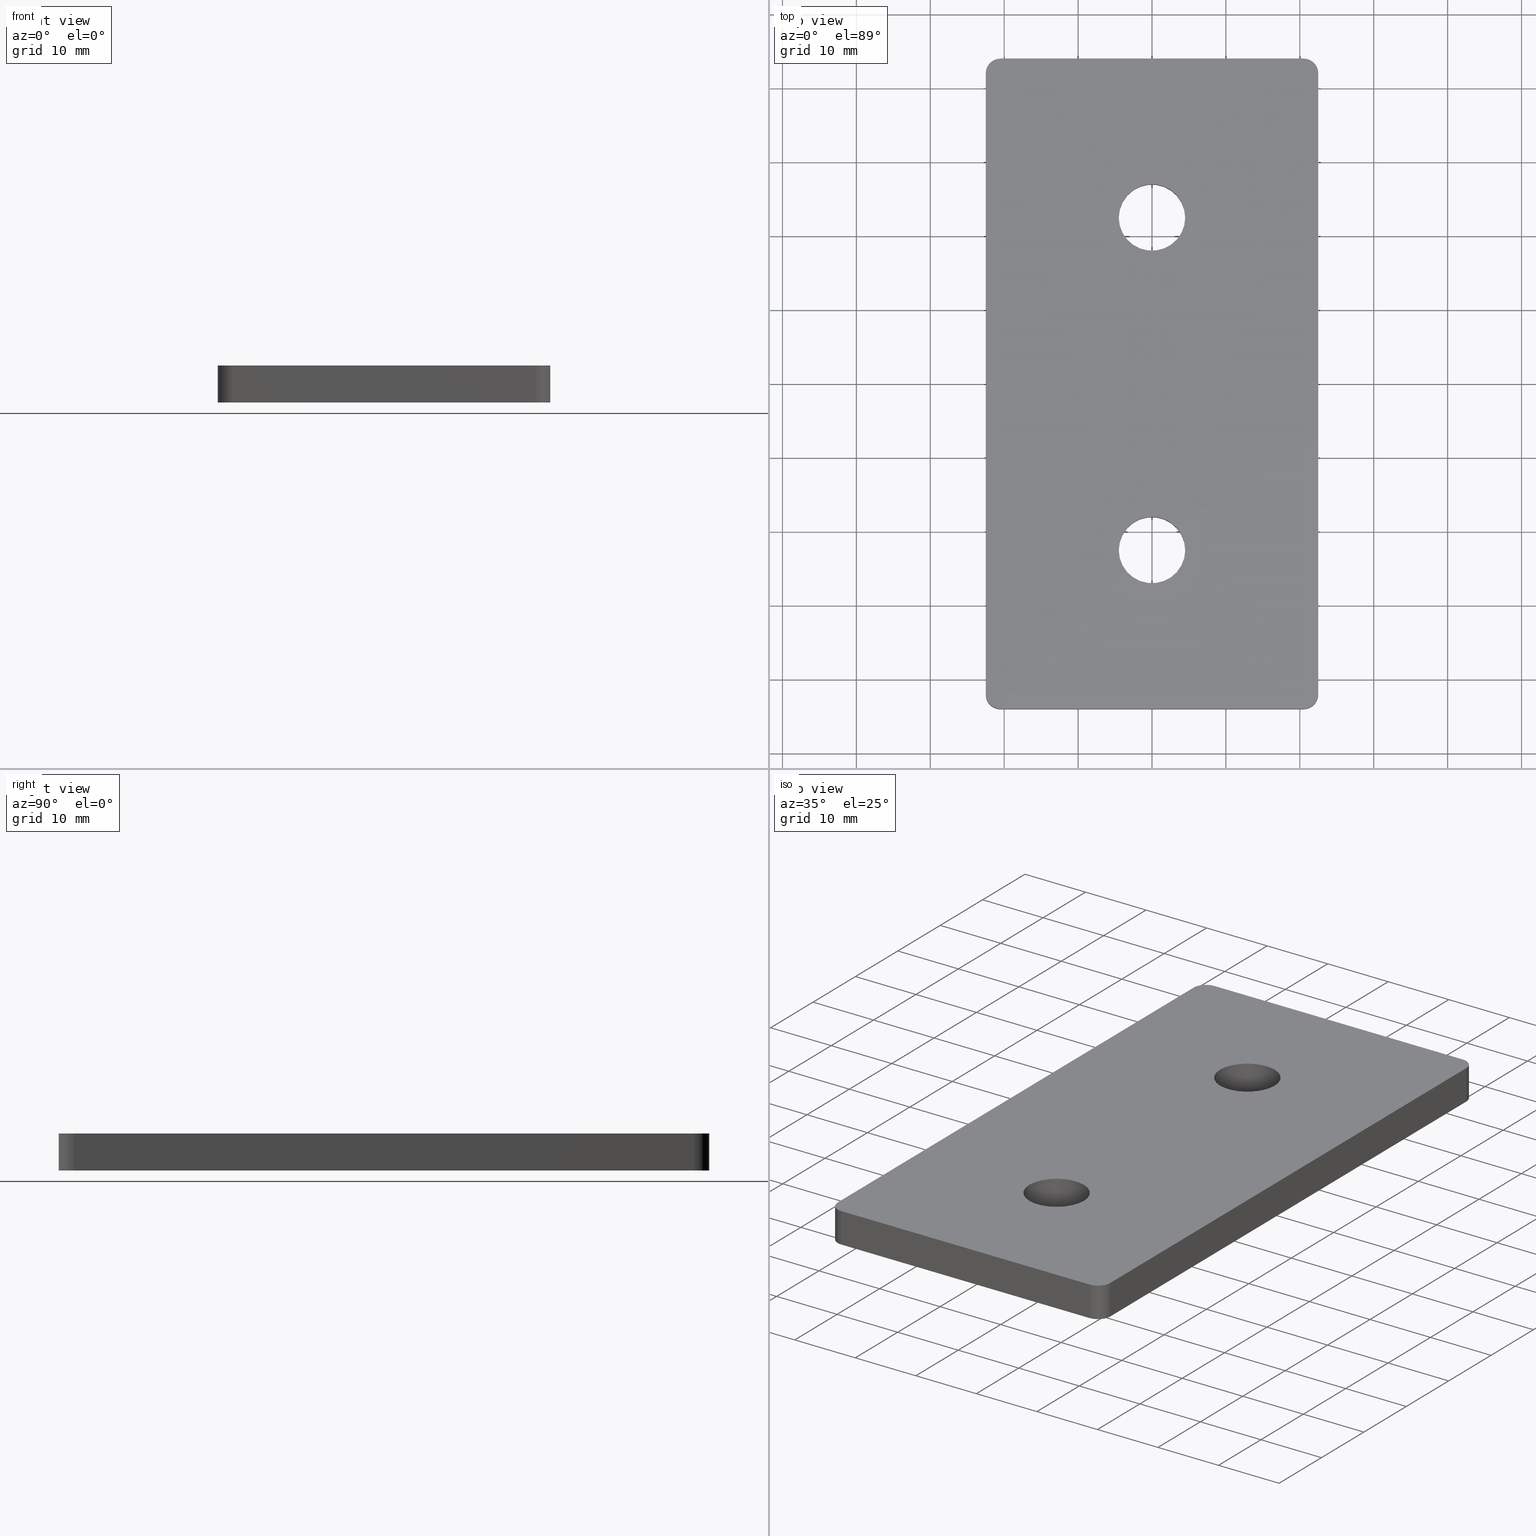
[diagram: canonical four-view strip — front | top / right | iso, engineering-drawing reading convention]
A machine part, canonical four-view strip (front | top / right | iso — engineering-drawing reading convention). The complete STEP part file that produces these views, byte-faithful:
ISO-10303-21;
HEADER;
/* Generated by software containing ST-Developer
 * from STEP Tools, Inc. (www.steptools.com) 
 */

FILE_DESCRIPTION(
/* description */ ('PIATTO DI UNIONE TRA PROF. 45X45 E 45X45'),
/* implementation_level */ '2;1');

FILE_NAME(
/* name */ 
'Q:\\Catalogo\\2_Accessori Dierre\\Per Download Web e catalogo cartace
o\\CATALOGO ELEMENTI ASSEMBLAGGIO\\PAGINA 19\\DPSXX0000976.stp',
/* time_stamp */ '2018-06-19T08:52:34+02:00',
/* author */ ('fzagni'),
/* organization */ (''),
/* preprocessor_version */ 'ST-DEVELOPER v16.1',
/* originating_system */ 'Autodesk Inventor 2016',
/* authorisation */ '');

FILE_SCHEMA (('AUTOMOTIVE_DESIGN { 1 0 10303 214 3 1 1 }'));
ENDSEC;

DATA;
#10=MECHANICAL_DESIGN_GEOMETRIC_PRESENTATION_REPRESENTATION('',(#13),#379);
#11=SHAPE_REPRESENTATION_RELATIONSHIP('SRR','None',#388,#12);
#12=ADVANCED_BREP_SHAPE_REPRESENTATION('',(#14),#378);
#13=STYLED_ITEM('',(#397),#14);
#14=MANIFOLD_SOLID_BREP('Solido1',#223);
#15=FACE_BOUND('',#41,.T.);
#16=FACE_BOUND('',#42,.T.);
#17=FACE_BOUND('',#49,.T.);
#18=FACE_BOUND('',#51,.T.);
#19=FACE_BOUND('',#55,.T.);
#20=FACE_BOUND('',#56,.T.);
#21=PLANE('',#228);
#22=PLANE('',#234);
#23=PLANE('',#239);
#24=PLANE('',#246);
#25=PLANE('',#247);
#26=PLANE('',#248);
#27=FACE_OUTER_BOUND('',#39,.T.);
#28=FACE_OUTER_BOUND('',#40,.T.);
#29=FACE_OUTER_BOUND('',#43,.T.);
#30=FACE_OUTER_BOUND('',#44,.T.);
#31=FACE_OUTER_BOUND('',#45,.T.);
#32=FACE_OUTER_BOUND('',#46,.T.);
#33=FACE_OUTER_BOUND('',#47,.T.);
#34=FACE_OUTER_BOUND('',#48,.T.);
#35=FACE_OUTER_BOUND('',#50,.T.);
#36=FACE_OUTER_BOUND('',#52,.T.);
#37=FACE_OUTER_BOUND('',#53,.T.);
#38=FACE_OUTER_BOUND('',#54,.T.);
#39=EDGE_LOOP('',(#149,#150,#151,#152));
#40=EDGE_LOOP('',(#153,#154,#155,#156,#157,#158,#159,#160));
#41=EDGE_LOOP('',(#161));
#42=EDGE_LOOP('',(#162));
#43=EDGE_LOOP('',(#163,#164,#165,#166));
#44=EDGE_LOOP('',(#167,#168,#169,#170));
#45=EDGE_LOOP('',(#171,#172,#173,#174));
#46=EDGE_LOOP('',(#175,#176,#177,#178));
#47=EDGE_LOOP('',(#179,#180,#181,#182));
#48=EDGE_LOOP('',(#183));
#49=EDGE_LOOP('',(#184));
#50=EDGE_LOOP('',(#185));
#51=EDGE_LOOP('',(#186));
#52=EDGE_LOOP('',(#187,#188,#189,#190));
#53=EDGE_LOOP('',(#191,#192,#193,#194));
#54=EDGE_LOOP('',(#195,#196,#197,#198,#199,#200,#201,#202));
#55=EDGE_LOOP('',(#203));
#56=EDGE_LOOP('',(#204));
#57=LINE('',#321,#73);
#58=LINE('',#324,#74);
#59=LINE('',#327,#75);
#60=LINE('',#331,#76);
#61=LINE('',#335,#77);
#62=LINE('',#338,#78);
#63=LINE('',#345,#79);
#64=LINE('',#346,#80);
#65=LINE('',#350,#81);
#66=LINE('',#355,#82);
#67=LINE('',#356,#83);
#68=LINE('',#359,#84);
#69=LINE('',#360,#85);
#70=LINE('',#364,#86);
#71=LINE('',#372,#87);
#72=LINE('',#374,#88);
#73=VECTOR('',#255,5.);
#74=VECTOR('',#258,5.);
#75=VECTOR('',#261,41.);
#76=VECTOR('',#264,84.);
#77=VECTOR('',#267,41.);
#78=VECTOR('',#270,84.);
#79=VECTOR('',#277,41.);
#80=VECTOR('',#278,5.);
#81=VECTOR('',#283,5.);
#82=VECTOR('',#288,5.);
#83=VECTOR('',#289,5.);
#84=VECTOR('',#292,5.);
#85=VECTOR('',#293,41.);
#86=VECTOR('',#298,5.);
#87=VECTOR('',#309,84.);
#88=VECTOR('',#312,84.);
#89=CIRCLE('',#226,2.);
#90=CIRCLE('',#227,2.);
#91=CIRCLE('',#229,2.);
#92=CIRCLE('',#230,2.);
#93=CIRCLE('',#231,2.);
#94=CIRCLE('',#232,4.5);
#95=CIRCLE('',#233,4.5);
#96=CIRCLE('',#236,2.);
#97=CIRCLE('',#238,2.);
#98=CIRCLE('',#241,2.);
#99=CIRCLE('',#243,4.5);
#100=CIRCLE('',#245,4.5);
#101=VERTEX_POINT('',#317);
#102=VERTEX_POINT('',#318);
#103=VERTEX_POINT('',#320);
#104=VERTEX_POINT('',#322);
#105=VERTEX_POINT('',#326);
#106=VERTEX_POINT('',#328);
#107=VERTEX_POINT('',#330);
#108=VERTEX_POINT('',#332);
#109=VERTEX_POINT('',#334);
#110=VERTEX_POINT('',#336);
#111=VERTEX_POINT('',#339);
#112=VERTEX_POINT('',#341);
#113=VERTEX_POINT('',#344);
#114=VERTEX_POINT('',#348);
#115=VERTEX_POINT('',#352);
#116=VERTEX_POINT('',#353);
#117=VERTEX_POINT('',#358);
#118=VERTEX_POINT('',#362);
#119=VERTEX_POINT('',#366);
#120=VERTEX_POINT('',#369);
#121=EDGE_CURVE('',#101,#102,#89,.T.);
#122=EDGE_CURVE('',#102,#103,#57,.T.);
#123=EDGE_CURVE('',#103,#104,#90,.T.);
#124=EDGE_CURVE('',#104,#101,#58,.T.);
#125=EDGE_CURVE('',#103,#105,#59,.T.);
#126=EDGE_CURVE('',#106,#105,#91,.T.);
#127=EDGE_CURVE('',#106,#107,#60,.T.);
#128=EDGE_CURVE('',#108,#107,#92,.T.);
#129=EDGE_CURVE('',#108,#109,#61,.T.);
#130=EDGE_CURVE('',#110,#109,#93,.T.);
#131=EDGE_CURVE('',#110,#104,#62,.T.);
#132=EDGE_CURVE('',#111,#111,#94,.T.);
#133=EDGE_CURVE('',#112,#112,#95,.T.);
#134=EDGE_CURVE('',#102,#113,#63,.T.);
#135=EDGE_CURVE('',#105,#113,#64,.T.);
#136=EDGE_CURVE('',#113,#114,#96,.T.);
#137=EDGE_CURVE('',#114,#106,#65,.T.);
#138=EDGE_CURVE('',#115,#116,#97,.T.);
#139=EDGE_CURVE('',#116,#110,#66,.T.);
#140=EDGE_CURVE('',#109,#115,#67,.T.);
#141=EDGE_CURVE('',#117,#108,#68,.T.);
#142=EDGE_CURVE('',#117,#115,#69,.T.);
#143=EDGE_CURVE('',#118,#117,#98,.T.);
#144=EDGE_CURVE('',#107,#118,#70,.T.);
#145=EDGE_CURVE('',#119,#119,#99,.T.);
#146=EDGE_CURVE('',#120,#120,#100,.T.);
#147=EDGE_CURVE('',#114,#118,#71,.T.);
#148=EDGE_CURVE('',#116,#101,#72,.T.);
#149=ORIENTED_EDGE('',*,*,#121,.T.);
#150=ORIENTED_EDGE('',*,*,#122,.T.);
#151=ORIENTED_EDGE('',*,*,#123,.T.);
#152=ORIENTED_EDGE('',*,*,#124,.T.);
#153=ORIENTED_EDGE('',*,*,#123,.F.);
#154=ORIENTED_EDGE('',*,*,#125,.T.);
#155=ORIENTED_EDGE('',*,*,#126,.F.);
#156=ORIENTED_EDGE('',*,*,#127,.T.);
#157=ORIENTED_EDGE('',*,*,#128,.F.);
#158=ORIENTED_EDGE('',*,*,#129,.T.);
#159=ORIENTED_EDGE('',*,*,#130,.F.);
#160=ORIENTED_EDGE('',*,*,#131,.T.);
#161=ORIENTED_EDGE('',*,*,#132,.T.);
#162=ORIENTED_EDGE('',*,*,#133,.T.);
#163=ORIENTED_EDGE('',*,*,#122,.F.);
#164=ORIENTED_EDGE('',*,*,#134,.T.);
#165=ORIENTED_EDGE('',*,*,#135,.F.);
#166=ORIENTED_EDGE('',*,*,#125,.F.);
#167=ORIENTED_EDGE('',*,*,#136,.T.);
#168=ORIENTED_EDGE('',*,*,#137,.T.);
#169=ORIENTED_EDGE('',*,*,#126,.T.);
#170=ORIENTED_EDGE('',*,*,#135,.T.);
#171=ORIENTED_EDGE('',*,*,#138,.T.);
#172=ORIENTED_EDGE('',*,*,#139,.T.);
#173=ORIENTED_EDGE('',*,*,#130,.T.);
#174=ORIENTED_EDGE('',*,*,#140,.T.);
#175=ORIENTED_EDGE('',*,*,#140,.F.);
#176=ORIENTED_EDGE('',*,*,#129,.F.);
#177=ORIENTED_EDGE('',*,*,#141,.F.);
#178=ORIENTED_EDGE('',*,*,#142,.T.);
#179=ORIENTED_EDGE('',*,*,#143,.T.);
#180=ORIENTED_EDGE('',*,*,#141,.T.);
#181=ORIENTED_EDGE('',*,*,#128,.T.);
#182=ORIENTED_EDGE('',*,*,#144,.T.);
#183=ORIENTED_EDGE('',*,*,#132,.F.);
#184=ORIENTED_EDGE('',*,*,#145,.F.);
#185=ORIENTED_EDGE('',*,*,#133,.F.);
#186=ORIENTED_EDGE('',*,*,#146,.F.);
#187=ORIENTED_EDGE('',*,*,#137,.F.);
#188=ORIENTED_EDGE('',*,*,#147,.T.);
#189=ORIENTED_EDGE('',*,*,#144,.F.);
#190=ORIENTED_EDGE('',*,*,#127,.F.);
#191=ORIENTED_EDGE('',*,*,#124,.F.);
#192=ORIENTED_EDGE('',*,*,#131,.F.);
#193=ORIENTED_EDGE('',*,*,#139,.F.);
#194=ORIENTED_EDGE('',*,*,#148,.T.);
#195=ORIENTED_EDGE('',*,*,#121,.F.);
#196=ORIENTED_EDGE('',*,*,#148,.F.);
#197=ORIENTED_EDGE('',*,*,#138,.F.);
#198=ORIENTED_EDGE('',*,*,#142,.F.);
#199=ORIENTED_EDGE('',*,*,#143,.F.);
#200=ORIENTED_EDGE('',*,*,#147,.F.);
#201=ORIENTED_EDGE('',*,*,#136,.F.);
#202=ORIENTED_EDGE('',*,*,#134,.F.);
#203=ORIENTED_EDGE('',*,*,#145,.T.);
#204=ORIENTED_EDGE('',*,*,#146,.T.);
#205=CYLINDRICAL_SURFACE('',#225,2.);
#206=CYLINDRICAL_SURFACE('',#235,2.);
#207=CYLINDRICAL_SURFACE('',#237,2.);
#208=CYLINDRICAL_SURFACE('',#240,2.);
#209=CYLINDRICAL_SURFACE('',#242,4.5);
#210=CYLINDRICAL_SURFACE('',#244,4.5);
#211=ADVANCED_FACE('',(#27),#205,.T.);
#212=ADVANCED_FACE('',(#28,#15,#16),#21,.F.);
#213=ADVANCED_FACE('',(#29),#22,.T.);
#214=ADVANCED_FACE('',(#30),#206,.T.);
#215=ADVANCED_FACE('',(#31),#207,.T.);
#216=ADVANCED_FACE('',(#32),#23,.T.);
#217=ADVANCED_FACE('',(#33),#208,.T.);
#218=ADVANCED_FACE('',(#34,#17),#209,.F.);
#219=ADVANCED_FACE('',(#35,#18),#210,.F.);
#220=ADVANCED_FACE('',(#36),#24,.T.);
#221=ADVANCED_FACE('',(#37),#25,.T.);
#222=ADVANCED_FACE('',(#38,#19,#20),#26,.T.);
#223=CLOSED_SHELL('',(#211,#212,#213,#214,#215,#216,#217,#218,#219,#220,
#221,#222));
#224=AXIS2_PLACEMENT_3D('placement',#315,#249,#250);
#225=AXIS2_PLACEMENT_3D('',#316,#251,#252);
#226=AXIS2_PLACEMENT_3D('',#319,#253,#254);
#227=AXIS2_PLACEMENT_3D('',#323,#256,#257);
#228=AXIS2_PLACEMENT_3D('',#325,#259,#260);
#229=AXIS2_PLACEMENT_3D('',#329,#262,#263);
#230=AXIS2_PLACEMENT_3D('',#333,#265,#266);
#231=AXIS2_PLACEMENT_3D('',#337,#268,#269);
#232=AXIS2_PLACEMENT_3D('',#340,#271,#272);
#233=AXIS2_PLACEMENT_3D('',#342,#273,#274);
#234=AXIS2_PLACEMENT_3D('',#343,#275,#276);
#235=AXIS2_PLACEMENT_3D('',#347,#279,#280);
#236=AXIS2_PLACEMENT_3D('',#349,#281,#282);
#237=AXIS2_PLACEMENT_3D('',#351,#284,#285);
#238=AXIS2_PLACEMENT_3D('',#354,#286,#287);
#239=AXIS2_PLACEMENT_3D('',#357,#290,#291);
#240=AXIS2_PLACEMENT_3D('',#361,#294,#295);
#241=AXIS2_PLACEMENT_3D('',#363,#296,#297);
#242=AXIS2_PLACEMENT_3D('',#365,#299,#300);
#243=AXIS2_PLACEMENT_3D('',#367,#301,#302);
#244=AXIS2_PLACEMENT_3D('',#368,#303,#304);
#245=AXIS2_PLACEMENT_3D('',#370,#305,#306);
#246=AXIS2_PLACEMENT_3D('',#371,#307,#308);
#247=AXIS2_PLACEMENT_3D('',#373,#310,#311);
#248=AXIS2_PLACEMENT_3D('',#375,#313,#314);
#249=DIRECTION('axis',(0.,0.,1.));
#250=DIRECTION('refdir',(1.,0.,0.));
#251=DIRECTION('center_axis',(0.,0.,1.));
#252=DIRECTION('ref_axis',(0.707106781186549,-0.707106781186546,0.));
#253=DIRECTION('center_axis',(0.,0.,-1.));
#254=DIRECTION('ref_axis',(0.707106781186549,-0.707106781186546,0.));
#255=DIRECTION('',(0.,0.,-1.));
#256=DIRECTION('center_axis',(0.,0.,1.));
#257=DIRECTION('ref_axis',(0.707106781186549,-0.707106781186546,0.));
#258=DIRECTION('',(0.,0.,1.));
#259=DIRECTION('center_axis',(0.,0.,1.));
#260=DIRECTION('ref_axis',(1.,0.,0.));
#261=DIRECTION('',(-1.,0.,0.));
#262=DIRECTION('center_axis',(0.,0.,1.));
#263=DIRECTION('ref_axis',(-0.707106781186546,-0.707106781186549,0.));
#264=DIRECTION('',(0.,1.,0.));
#265=DIRECTION('center_axis',(0.,0.,1.));
#266=DIRECTION('ref_axis',(-0.707106781186549,0.707106781186546,0.));
#267=DIRECTION('',(1.,0.,0.));
#268=DIRECTION('center_axis',(0.,0.,1.));
#269=DIRECTION('ref_axis',(0.707106781186546,0.707106781186549,0.));
#270=DIRECTION('',(0.,-1.,0.));
#271=DIRECTION('center_axis',(0.,0.,1.));
#272=DIRECTION('ref_axis',(1.,0.,0.));
#273=DIRECTION('center_axis',(0.,0.,1.));
#274=DIRECTION('ref_axis',(1.,0.,0.));
#275=DIRECTION('center_axis',(0.,-1.,0.));
#276=DIRECTION('ref_axis',(0.,0.,-1.));
#277=DIRECTION('',(-1.,0.,0.));
#278=DIRECTION('',(0.,0.,1.));
#279=DIRECTION('center_axis',(0.,0.,1.));
#280=DIRECTION('ref_axis',(-0.707106781186546,-0.707106781186549,0.));
#281=DIRECTION('center_axis',(0.,0.,-1.));
#282=DIRECTION('ref_axis',(-0.707106781186546,-0.707106781186549,0.));
#283=DIRECTION('',(0.,0.,-1.));
#284=DIRECTION('center_axis',(0.,0.,1.));
#285=DIRECTION('ref_axis',(0.707106781186546,0.707106781186549,0.));
#286=DIRECTION('center_axis',(0.,0.,-1.));
#287=DIRECTION('ref_axis',(0.707106781186546,0.707106781186549,0.));
#288=DIRECTION('',(0.,0.,-1.));
#289=DIRECTION('',(0.,0.,1.));
#290=DIRECTION('center_axis',(0.,1.,0.));
#291=DIRECTION('ref_axis',(0.,0.,1.));
#292=DIRECTION('',(0.,0.,-1.));
#293=DIRECTION('',(1.,0.,0.));
#294=DIRECTION('center_axis',(0.,0.,1.));
#295=DIRECTION('ref_axis',(-0.707106781186549,0.707106781186546,0.));
#296=DIRECTION('center_axis',(0.,0.,-1.));
#297=DIRECTION('ref_axis',(-0.707106781186549,0.707106781186546,0.));
#298=DIRECTION('',(0.,0.,1.));
#299=DIRECTION('center_axis',(0.,0.,1.));
#300=DIRECTION('ref_axis',(1.,0.,0.));
#301=DIRECTION('center_axis',(0.,0.,-1.));
#302=DIRECTION('ref_axis',(1.,0.,0.));
#303=DIRECTION('center_axis',(0.,0.,1.));
#304=DIRECTION('ref_axis',(1.,0.,0.));
#305=DIRECTION('center_axis',(0.,0.,-1.));
#306=DIRECTION('ref_axis',(1.,0.,0.));
#307=DIRECTION('center_axis',(-1.,0.,0.));
#308=DIRECTION('ref_axis',(0.,0.,1.));
#309=DIRECTION('',(0.,1.,0.));
#310=DIRECTION('center_axis',(1.,0.,0.));
#311=DIRECTION('ref_axis',(0.,0.,-1.));
#312=DIRECTION('',(0.,-1.,0.));
#313=DIRECTION('center_axis',(0.,0.,1.));
#314=DIRECTION('ref_axis',(1.,0.,0.));
#315=CARTESIAN_POINT('',(0.,0.,0.));
#316=CARTESIAN_POINT('Origin',(20.5,-42.,0.));
#317=CARTESIAN_POINT('',(22.5,-42.,5.));
#318=CARTESIAN_POINT('',(20.5,-44.,5.));
#319=CARTESIAN_POINT('Origin',(20.5,-42.,5.));
#320=CARTESIAN_POINT('',(20.5,-44.,0.));
#321=CARTESIAN_POINT('',(20.5,-44.,0.));
#322=CARTESIAN_POINT('',(22.5,-42.,0.));
#323=CARTESIAN_POINT('Origin',(20.5,-42.,0.));
#324=CARTESIAN_POINT('',(22.5,-42.,0.));
#325=CARTESIAN_POINT('Origin',(0.,3.08859036925795E-16,0.));
#326=CARTESIAN_POINT('',(-20.5,-44.,0.));
#327=CARTESIAN_POINT('',(22.5,-44.,0.));
#328=CARTESIAN_POINT('',(-22.5,-42.,0.));
#329=CARTESIAN_POINT('Origin',(-20.5,-42.,0.));
#330=CARTESIAN_POINT('',(-22.5,42.,0.));
#331=CARTESIAN_POINT('',(-22.5,-44.,0.));
#332=CARTESIAN_POINT('',(-20.5,44.,0.));
#333=CARTESIAN_POINT('Origin',(-20.5,42.,0.));
#334=CARTESIAN_POINT('',(20.5,44.,0.));
#335=CARTESIAN_POINT('',(-22.5,44.,0.));
#336=CARTESIAN_POINT('',(22.5,42.,0.));
#337=CARTESIAN_POINT('Origin',(20.5,42.,0.));
#338=CARTESIAN_POINT('',(22.5,44.,0.));
#339=CARTESIAN_POINT('',(-4.5,22.5,0.));
#340=CARTESIAN_POINT('Origin',(0.,22.5,0.));
#341=CARTESIAN_POINT('',(-4.5,-22.5,0.));
#342=CARTESIAN_POINT('Origin',(0.,-22.5,0.));
#343=CARTESIAN_POINT('Origin',(22.5,-44.,0.));
#344=CARTESIAN_POINT('',(-20.5,-44.,5.));
#345=CARTESIAN_POINT('',(22.5,-44.,5.));
#346=CARTESIAN_POINT('',(-20.5,-44.,0.));
#347=CARTESIAN_POINT('Origin',(-20.5,-42.,0.));
#348=CARTESIAN_POINT('',(-22.5,-42.,5.));
#349=CARTESIAN_POINT('Origin',(-20.5,-42.,5.));
#350=CARTESIAN_POINT('',(-22.5,-42.,0.));
#351=CARTESIAN_POINT('Origin',(20.5,42.,0.));
#352=CARTESIAN_POINT('',(20.5,44.,5.));
#353=CARTESIAN_POINT('',(22.5,42.,5.));
#354=CARTESIAN_POINT('Origin',(20.5,42.,5.));
#355=CARTESIAN_POINT('',(22.5,42.,0.));
#356=CARTESIAN_POINT('',(20.5,44.,0.));
#357=CARTESIAN_POINT('Origin',(-22.5,44.,0.));
#358=CARTESIAN_POINT('',(-20.5,44.,5.));
#359=CARTESIAN_POINT('',(-20.5,44.,0.));
#360=CARTESIAN_POINT('',(-22.5,44.,5.));
#361=CARTESIAN_POINT('Origin',(-20.5,42.,0.));
#362=CARTESIAN_POINT('',(-22.5,42.,5.));
#363=CARTESIAN_POINT('Origin',(-20.5,42.,5.));
#364=CARTESIAN_POINT('',(-22.5,42.,0.));
#365=CARTESIAN_POINT('Origin',(0.,22.5,-93.9646401499041));
#366=CARTESIAN_POINT('',(4.5,22.5,5.));
#367=CARTESIAN_POINT('Origin',(0.,22.5,5.));
#368=CARTESIAN_POINT('Origin',(0.,-22.5,-93.9646401499041));
#369=CARTESIAN_POINT('',(4.5,-22.5,5.));
#370=CARTESIAN_POINT('Origin',(0.,-22.5,5.));
#371=CARTESIAN_POINT('Origin',(-22.5,-44.,0.));
#372=CARTESIAN_POINT('',(-22.5,-44.,5.));
#373=CARTESIAN_POINT('Origin',(22.5,44.,0.));
#374=CARTESIAN_POINT('',(22.5,44.,5.));
#375=CARTESIAN_POINT('Origin',(0.,-3.08859036925795E-16,5.));
#376=UNCERTAINTY_MEASURE_WITH_UNIT(LENGTH_MEASURE(0.01),#380,
'DISTANCE_ACCURACY_VALUE',
'Maximum model space distance between geometric entities at asserted c
onnectivities');
#377=UNCERTAINTY_MEASURE_WITH_UNIT(LENGTH_MEASURE(1.E-6),#380,
'DISTANCE_ACCURACY_VALUE',
'Maximum model space distance between geometric entities at asserted c
onnectivities');
#378=(
GEOMETRIC_REPRESENTATION_CONTEXT(3)
GLOBAL_UNCERTAINTY_ASSIGNED_CONTEXT((#376))
GLOBAL_UNIT_ASSIGNED_CONTEXT((#380,#383,#381))
REPRESENTATION_CONTEXT('','3D')
);
#379=(
GEOMETRIC_REPRESENTATION_CONTEXT(3)
GLOBAL_UNCERTAINTY_ASSIGNED_CONTEXT((#377))
GLOBAL_UNIT_ASSIGNED_CONTEXT((#380,#383,#381))
REPRESENTATION_CONTEXT('','3D')
);
#380=(
LENGTH_UNIT()
NAMED_UNIT(*)
SI_UNIT(.MILLI.,.METRE.)
);
#381=(
NAMED_UNIT(*)
SI_UNIT($,.STERADIAN.)
SOLID_ANGLE_UNIT()
);
#382=DIMENSIONAL_EXPONENTS(0.,0.,0.,0.,0.,0.,0.);
#383=(
CONVERSION_BASED_UNIT('degree',#385)
NAMED_UNIT(#382)
PLANE_ANGLE_UNIT()
);
#384=(
NAMED_UNIT(*)
PLANE_ANGLE_UNIT()
SI_UNIT($,.RADIAN.)
);
#385=PLANE_ANGLE_MEASURE_WITH_UNIT(PLANE_ANGLE_MEASURE(0.01745329252),#384);
#386=SHAPE_DEFINITION_REPRESENTATION(#387,#388);
#387=PRODUCT_DEFINITION_SHAPE('',$,#390);
#388=SHAPE_REPRESENTATION('',(#224),#378);
#389=PRODUCT_DEFINITION_CONTEXT('part definition',#394,'design');
#390=PRODUCT_DEFINITION('27.452.00','27.452.00',#391,#389);
#391=PRODUCT_DEFINITION_FORMATION('','A',#396);
#392=PRODUCT_RELATED_PRODUCT_CATEGORY('27.452.00','27.452.00',(#396));
#393=APPLICATION_PROTOCOL_DEFINITION('international standard',
'automotive_design',2009,#394);
#394=APPLICATION_CONTEXT(
'Core Data for Automotive Mechanical Design Process');
#395=PRODUCT_CONTEXT('part definition',#394,'mechanical');
#396=PRODUCT('27.452.00','27.452.00',$,(#395));
#397=PRESENTATION_STYLE_ASSIGNMENT((#398));
#398=SURFACE_STYLE_USAGE(.BOTH.,#399);
#399=SURFACE_SIDE_STYLE('',(#400));
#400=SURFACE_STYLE_FILL_AREA(#401);
#401=FILL_AREA_STYLE('',(#402));
#402=FILL_AREA_STYLE_COLOUR('',#403);
#403=COLOUR_RGB('',0.83921568627451,0.886274509803922,0.854901960784314);
ENDSEC;
END-ISO-10303-21;
